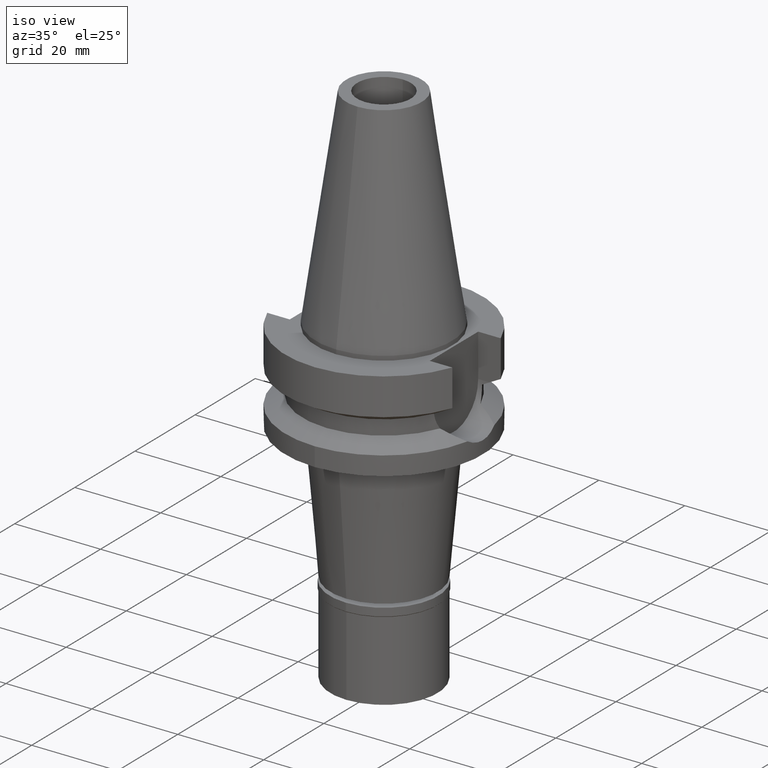
[diagram: clean part render]
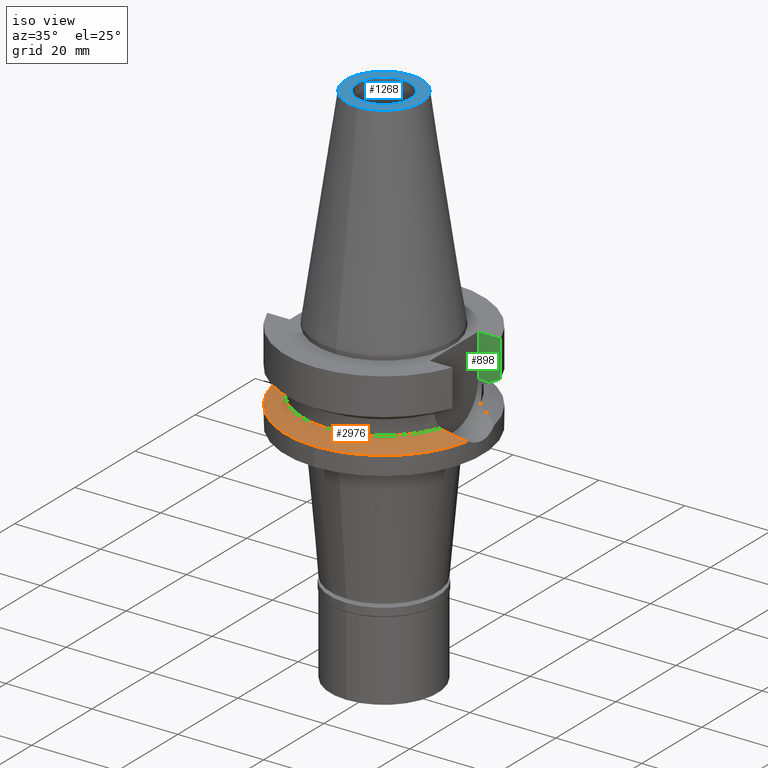
[diagram: same view with three faces highlighted in distinct colors, each labeled with its STEP entity id]
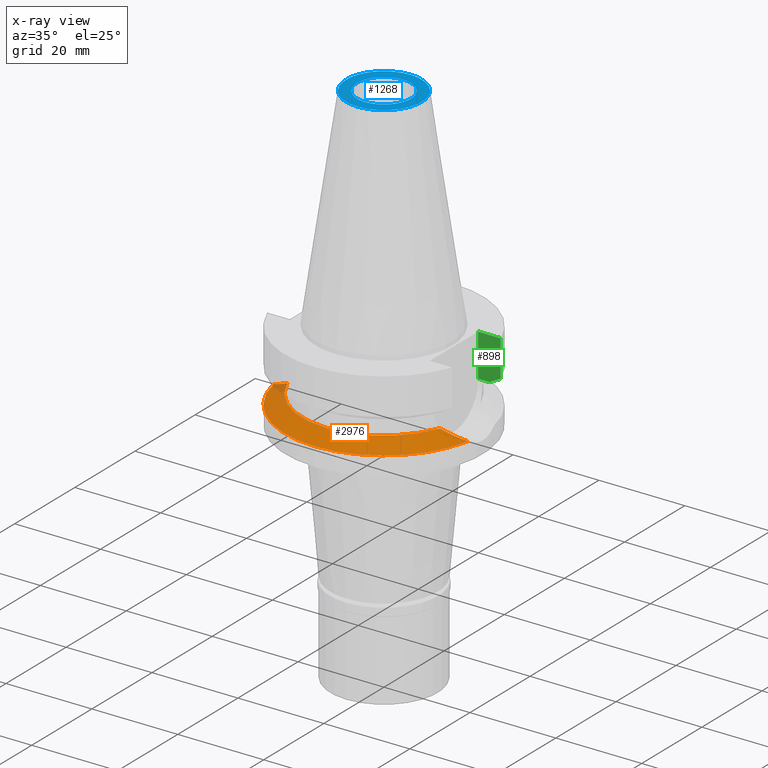
[diagram: x-ray of the same camera — body ghosted, the three highlighted faces saturated]
A machine part, iso view with three faces highlighted in distinct colors.
The next image is the same camera in x-ray (body ghosted, the three faces saturated) — at least one of them is partly hidden behind the body in this view.
Their STEP definitions:

[orange] entity #2976 — the highlighted conical surface has half-angle 60 deg.
#5 = DIRECTION ( 'NONE',  ( 0.0000000000000000000, -1.000000000000000000, 0.0000000000000000000 ) ) ;
#10 = B_SPLINE_CURVE_WITH_KNOTS ( 'NONE', 3,
 ( #1485, #2432, #1346, #2205 ),
 .UNSPECIFIED., .F., .F.,
 ( 4, 4 ),
 ( 0.0000000000000000000, 1.000000000000000000 ),
 .UNSPECIFIED. ) ;
#20 = AXIS2_PLACEMENT_3D ( 'NONE', #703, #2888, #566 ) ;
#104 = DIRECTION ( 'NONE',  ( 0.9807766722643714852, -0.1951335930638943839, 0.0000000000000000000 ) ) ;
#147 = CARTESIAN_POINT ( 'NONE',  ( -22.55786346208000026, -4.488072640470000430, -17.63279163029000074 ) ) ;
#183 = EDGE_CURVE ( 'NONE', #2052, #2368, #1015, .T. ) ;
#381 = ORIENTED_EDGE ( 'NONE', *, *, #1262, .F. ) ;
#403 = AXIS2_PLACEMENT_3D ( 'NONE', #2902, #1283, #104 ) ;
#463 = CARTESIAN_POINT ( 'NONE',  ( 0.0000000000000000000, 0.0000000000000000000, -15.32339055352999857 ) ) ;
#489 = CONICAL_SURFACE ( 'NONE', #817, 21.00000000000000000, 1.047197551196400456 ) ;
#566 = DIRECTION ( 'NONE',  ( 0.0000000000000000000, -1.000000000000000000, 0.0000000000000000000 ) ) ;
#664 = ORIENTED_EDGE ( 'NONE', *, *, #2131, .F. ) ;
#682 = FACE_OUTER_BOUND ( 'NONE', #1265, .T. ) ;
#703 = CARTESIAN_POINT ( 'NONE',  ( 0.0000000000000000000, 0.0000000000000000000, -17.63279163029000074 ) ) ;
#817 = AXIS2_PLACEMENT_3D ( 'NONE', #2402, #1677, #5 ) ;
#867 = ORIENTED_EDGE ( 'NONE', *, *, #1216, .F. ) ;
#883 = CARTESIAN_POINT ( 'NONE',  ( -22.55786346208000026, -4.488072640470000430, -17.63279163029000074 ) ) ;
#1015 = B_SPLINE_CURVE_WITH_KNOTS ( 'NONE', 3,
 ( #147, #1798, #2042, #2776 ),
 .UNSPECIFIED., .F., .F.,
 ( 4, 4 ),
 ( 0.0000000000000000000, 1.000000000000000000 ),
 .UNSPECIFIED. ) ;
#1093 = ORIENTED_EDGE ( 'NONE', *, *, #183, .F. ) ;
#1216 = EDGE_CURVE ( 'NONE', #2093, #1653, #10, .T. ) ;
#1262 = EDGE_CURVE ( 'NONE', #1653, #2111, #2271, .T. ) ;
#1265 = EDGE_LOOP ( 'NONE', ( #2990, #381, #867, #664, #1093 ) ) ;
#1283 = DIRECTION ( 'NONE',  ( 0.0000000000000000000, 0.0000000000000000000, -1.000000000000000000 ) ) ;
#1346 = CARTESIAN_POINT ( 'NONE',  ( 21.37344794602009657, -5.343258989399801706, -17.05846002345918322 ) ) ;
#1409 = DIRECTION ( 'NONE',  ( 0.0000000000000000000, -1.000000000000000000, 0.0000000000000000000 ) ) ;
#1485 = CARTESIAN_POINT ( 'NONE',  ( 17.75736593456000278, -6.758398853743999624, -15.32339055352999857 ) ) ;
#1486 = CARTESIAN_POINT ( 'NONE',  ( 22.55786346208000026, -4.488072640470000430, -17.63279163029000074 ) ) ;
#1636 = CARTESIAN_POINT ( 'NONE',  ( 17.75736593456000278, -6.758398853743999624, -15.32339055352999857 ) ) ;
#1653 = VERTEX_POINT ( 'NONE', #1486 ) ;
#1677 = DIRECTION ( 'NONE',  ( 0.0000000000000000000, 0.0000000000000000000, -1.000000000000000000 ) ) ;
#1798 = CARTESIAN_POINT ( 'NONE',  ( -21.37344794597818165, -5.343258989420458960, -17.05846002344531342 ) ) ;
#2042 = CARTESIAN_POINT ( 'NONE',  ( -19.77328210347151582, -6.137069160761649655, -16.28355951933681567 ) ) ;
#2052 = VERTEX_POINT ( 'NONE', #883 ) ;
#2093 = VERTEX_POINT ( 'NONE', #1636 ) ;
#2099 = CIRCLE ( 'NONE', #2789, 19.00000000000000000 ) ;
#2111 = VERTEX_POINT ( 'NONE', #2574 ) ;
#2131 = EDGE_CURVE ( 'NONE', #2368, #2093, #2099, .T. ) ;
#2205 = CARTESIAN_POINT ( 'NONE',  ( 22.55786346208000026, -4.488072640470000430, -17.63279163029000074 ) ) ;
#2271 = CIRCLE ( 'NONE', #403, 23.00000000000001066 ) ;
#2368 = VERTEX_POINT ( 'NONE', #2809 ) ;
#2393 = EDGE_CURVE ( 'NONE', #2111, #2052, #2689, .T. ) ;
#2402 = CARTESIAN_POINT ( 'NONE',  ( 0.0000000000000000000, 0.0000000000000000000, -16.47809109191000232 ) ) ;
#2432 = CARTESIAN_POINT ( 'NONE',  ( 19.77328210351343074, -6.137069160748133356, -16.28355951935770562 ) ) ;
#2574 = CARTESIAN_POINT ( 'NONE',  ( 0.0000000000000000000, -23.00000000000000000, -17.63279163029000074 ) ) ;
#2689 = CIRCLE ( 'NONE', #20, 23.00000000000000000 ) ;
#2776 = CARTESIAN_POINT ( 'NONE',  ( -17.75736593456000278, -6.758398853743999624, -15.32339055352999857 ) ) ;
#2789 = AXIS2_PLACEMENT_3D ( 'NONE', #463, #2823, #1409 ) ;
#2809 = CARTESIAN_POINT ( 'NONE',  ( -17.75736593456000278, -6.758398853743999624, -15.32339055352999857 ) ) ;
#2823 = DIRECTION ( 'NONE',  ( 0.0000000000000000000, 0.0000000000000000000, 1.000000000000000000 ) ) ;
#2888 = DIRECTION ( 'NONE',  ( 0.0000000000000000000, 0.0000000000000000000, -1.000000000000000000 ) ) ;
#2902 = CARTESIAN_POINT ( 'NONE',  ( 0.0000000000000000000, 0.0000000000000000000, -17.63279163029000074 ) ) ;
#2976 = ADVANCED_FACE ( 'NONE', ( #682 ), #489, .T. ) ;
#2990 = ORIENTED_EDGE ( 'NONE', *, *, #2393, .F. ) ;

[blue] entity #1268 — the highlighted planar face has unit normal (0, 0, -1).
#137 = DIRECTION ( 'NONE',  ( 0.0000000000000000000, 0.0000000000000000000, 1.000000000000000000 ) ) ;
#249 = CIRCLE ( 'NONE', #1029, 8.816791732783000768 ) ;
#561 = FACE_OUTER_BOUND ( 'NONE', #2781, .T. ) ;
#779 = DIRECTION ( 'NONE',  ( 0.0000000000000000000, -1.000000000000000000, 0.0000000000000000000 ) ) ;
#794 = DIRECTION ( 'NONE',  ( 0.0000000000000000000, 0.0000000000000000000, -1.000000000000000000 ) ) ;
#855 = AXIS2_PLACEMENT_3D ( 'NONE', #2294, #137, #2296 ) ;
#924 = CIRCLE ( 'NONE', #1708, 8.816791732783000768 ) ;
#990 = VERTEX_POINT ( 'NONE', #2731 ) ;
#1029 = AXIS2_PLACEMENT_3D ( 'NONE', #1973, #2923, #779 ) ;
#1038 = FACE_BOUND ( 'NONE', #1551, .T. ) ;
#1127 = DIRECTION ( 'NONE',  ( 0.0000000000000000000, 1.000000000000000000, 0.0000000000000000000 ) ) ;
#1268 = ADVANCED_FACE ( 'NONE', ( #561, #1038 ), #1529, .F. ) ;
#1426 = ORIENTED_EDGE ( 'NONE', *, *, #2595, .F. ) ;
#1469 = CIRCLE ( 'NONE', #1519, 6.250000000000000000 ) ;
#1504 = VERTEX_POINT ( 'NONE', #2414 ) ;
#1519 = AXIS2_PLACEMENT_3D ( 'NONE', #2041, #2262, #1127 ) ;
#1529 = PLANE ( 'NONE',  #2122 ) ;
#1551 = EDGE_LOOP ( 'NONE', ( #2175, #1426 ) ) ;
#1654 = VERTEX_POINT ( 'NONE', #2433 ) ;
#1708 = AXIS2_PLACEMENT_3D ( 'NONE', #1814, #2072, #2759 ) ;
#1717 = DIRECTION ( 'NONE',  ( 0.0000000000000000000, -1.000000000000000000, 0.0000000000000000000 ) ) ;
#1733 = EDGE_CURVE ( 'NONE', #990, #2678, #249, .T. ) ;
#1814 = CARTESIAN_POINT ( 'NONE',  ( 0.0000000000000000000, 0.0000000000000000000, 48.39999999999999858 ) ) ;
#1973 = CARTESIAN_POINT ( 'NONE',  ( 0.0000000000000000000, 0.0000000000000000000, 48.39999999999999858 ) ) ;
#2041 = CARTESIAN_POINT ( 'NONE',  ( 0.0000000000000000000, 0.0000000000000000000, 48.39999999999999858 ) ) ;
#2072 = DIRECTION ( 'NONE',  ( 0.0000000000000000000, 0.0000000000000000000, -1.000000000000000000 ) ) ;
#2122 = AXIS2_PLACEMENT_3D ( 'NONE', #2935, #794, #1717 ) ;
#2175 = ORIENTED_EDGE ( 'NONE', *, *, #2351, .F. ) ;
#2202 = ORIENTED_EDGE ( 'NONE', *, *, #2911, .F. ) ;
#2262 = DIRECTION ( 'NONE',  ( 0.0000000000000000000, 0.0000000000000000000, 1.000000000000000000 ) ) ;
#2294 = CARTESIAN_POINT ( 'NONE',  ( 0.0000000000000000000, 0.0000000000000000000, 48.39999999999999858 ) ) ;
#2296 = DIRECTION ( 'NONE',  ( 0.0000000000000000000, -1.000000000000000000, 0.0000000000000000000 ) ) ;
#2351 = EDGE_CURVE ( 'NONE', #1654, #1504, #1469, .T. ) ;
#2390 = CARTESIAN_POINT ( 'NONE',  ( 0.0000000000000000000, 8.816791732783000768, 48.39999999999999858 ) ) ;
#2414 = CARTESIAN_POINT ( 'NONE',  ( 0.0000000000000000000, -6.250000000000000000, 48.39999999999999858 ) ) ;
#2433 = CARTESIAN_POINT ( 'NONE',  ( 0.0000000000000000000, 6.250000000000000000, 48.39999999999999858 ) ) ;
#2595 = EDGE_CURVE ( 'NONE', #1504, #1654, #2835, .T. ) ;
#2678 = VERTEX_POINT ( 'NONE', #2390 ) ;
#2731 = CARTESIAN_POINT ( 'NONE',  ( 0.0000000000000000000, -8.816791732783000768, 48.39999999999999858 ) ) ;
#2759 = DIRECTION ( 'NONE',  ( 0.0000000000000000000, 1.000000000000000000, 0.0000000000000000000 ) ) ;
#2781 = EDGE_LOOP ( 'NONE', ( #2202, #2921 ) ) ;
#2835 = CIRCLE ( 'NONE', #855, 6.250000000000000000 ) ;
#2911 = EDGE_CURVE ( 'NONE', #2678, #990, #924, .T. ) ;
#2921 = ORIENTED_EDGE ( 'NONE', *, *, #1733, .F. ) ;
#2923 = DIRECTION ( 'NONE',  ( 0.0000000000000000000, 0.0000000000000000000, -1.000000000000000000 ) ) ;
#2935 = CARTESIAN_POINT ( 'NONE',  ( 0.0000000000000000000, 0.0000000000000000000, 48.39999999999999858 ) ) ;

[green] entity #898 — the highlighted planar face has unit normal (0, 1, 0).
#233 = VECTOR ( 'NONE', #2282, 1000.000000000000000 ) ;
#299 = CARTESIAN_POINT ( 'NONE',  ( 20.64098922513857204, 8.049999155450739963, -10.05625859774404063 ) ) ;
#464 = EDGE_CURVE ( 'NONE', #2870, #1462, #2452, .T. ) ;
#505 = CARTESIAN_POINT ( 'NONE',  ( 21.54524309446999908, 8.050000000000000711, -1.000000000000000000 ) ) ;
#567 = CARTESIAN_POINT ( 'NONE',  ( 16.29999999999999716, 8.050000000000000711, -1.000000000000000000 ) ) ;
#649 = CARTESIAN_POINT ( 'NONE',  ( 16.29999999999999716, 8.050000000000000711, -10.94999999999999929 ) ) ;
#658 = EDGE_CURVE ( 'NONE', #1462, #777, #1563, .T. ) ;
#724 = VERTEX_POINT ( 'NONE', #2834 ) ;
#777 = VERTEX_POINT ( 'NONE', #1634 ) ;
#800 = CARTESIAN_POINT ( 'NONE',  ( 23.00000000000000000, 8.050000000000000711, -10.94999999999999929 ) ) ;
#898 = ADVANCED_FACE ( 'NONE', ( #2872 ), #2685, .F. ) ;
#997 = DIRECTION ( 'NONE',  ( -0.0000000000000000000, 1.000000000000000000, 0.0000000000000000000 ) ) ;
#1255 = DIRECTION ( 'NONE',  ( 0.0000000000000000000, 0.0000000000000000000, -1.000000000000000000 ) ) ;
#1342 = CARTESIAN_POINT ( 'NONE',  ( 16.29999999999999716, 8.050000000000000711, -10.94999999999999929 ) ) ;
#1350 = EDGE_CURVE ( 'NONE', #1916, #724, #2050, .T. ) ;
#1368 = ORIENTED_EDGE ( 'NONE', *, *, #658, .T. ) ;
#1450 = CARTESIAN_POINT ( 'NONE',  ( 21.54524325238000060, 8.049999577379001181, -9.567211146543000311 ) ) ;
#1462 = VERTEX_POINT ( 'NONE', #649 ) ;
#1563 = LINE ( 'NONE', #1342, #233 ) ;
#1587 = EDGE_CURVE ( 'NONE', #1916, #777, #2087, .T. ) ;
#1634 = CARTESIAN_POINT ( 'NONE',  ( 18.96738966530000070, 8.049994318182998043, -10.95000099923000114 ) ) ;
#1748 = DIRECTION ( 'NONE',  ( 1.000000000000000000, 0.0000000000000000000, 0.0000000000000000000 ) ) ;
#1787 = CARTESIAN_POINT ( 'NONE',  ( 16.29999999999999716, 8.050000000000000711, -1.000000000000000000 ) ) ;
#1806 = LINE ( 'NONE', #505, #1944 ) ;
#1809 = DIRECTION ( 'NONE',  ( -1.843134610276992765E-08, 4.933012972513982769E-08, 0.9999999999999985567 ) ) ;
#1916 = VERTEX_POINT ( 'NONE', #1450 ) ;
#1944 = VECTOR ( 'NONE', #2949, 1000.000000000000000 ) ;
#1981 = EDGE_CURVE ( 'NONE', #724, #2870, #1806, .T. ) ;
#2014 = AXIS2_PLACEMENT_3D ( 'NONE', #800, #997, #1748 ) ;
#2036 = ORIENTED_EDGE ( 'NONE', *, *, #1981, .T. ) ;
#2050 = LINE ( 'NONE', #2098, #2526 ) ;
#2056 = VECTOR ( 'NONE', #1255, 1000.000000000000000 ) ;
#2087 = B_SPLINE_CURVE_WITH_KNOTS ( 'NONE', 3,
 ( #2446, #299, #2852, #2385 ),
 .UNSPECIFIED., .F., .F.,
 ( 4, 4 ),
 ( 0.0000000000000000000, 1.000000000000000000 ),
 .UNSPECIFIED. ) ;
#2098 = CARTESIAN_POINT ( 'NONE',  ( 21.54524325238000060, 8.049999577379001181, -9.567211146543000311 ) ) ;
#2141 = ORIENTED_EDGE ( 'NONE', *, *, #1350, .T. ) ;
#2282 = DIRECTION ( 'NONE',  ( 0.9999999999976612042, -2.130104031153920346E-06, -3.746083742386856477E-07 ) ) ;
#2385 = CARTESIAN_POINT ( 'NONE',  ( 18.96738966530000070, 8.049994318182998043, -10.95000099923000114 ) ) ;
#2442 = EDGE_LOOP ( 'NONE', ( #2141, #2036, #2496, #1368, #2753 ) ) ;
#2446 = CARTESIAN_POINT ( 'NONE',  ( 21.54524325238000060, 8.049999577379001181, -9.567211146543000311 ) ) ;
#2452 = LINE ( 'NONE', #567, #2056 ) ;
#2496 = ORIENTED_EDGE ( 'NONE', *, *, #464, .T. ) ;
#2526 = VECTOR ( 'NONE', #1809, 1000.000000000000114 ) ;
#2685 = PLANE ( 'NONE',  #2014 ) ;
#2753 = ORIENTED_EDGE ( 'NONE', *, *, #1587, .F. ) ;
#2834 = CARTESIAN_POINT ( 'NONE',  ( 21.54524309446999908, 8.050000000000000711, -1.000000000000000000 ) ) ;
#2852 = CARTESIAN_POINT ( 'NONE',  ( 19.78174442298433533, 8.049991903556987793, -10.51718567366341262 ) ) ;
#2870 = VERTEX_POINT ( 'NONE', #1787 ) ;
#2872 = FACE_OUTER_BOUND ( 'NONE', #2442, .T. ) ;
#2949 = DIRECTION ( 'NONE',  ( -1.000000000000000000, -9.380896855521999773E-14, 0.0000000000000000000 ) ) ;